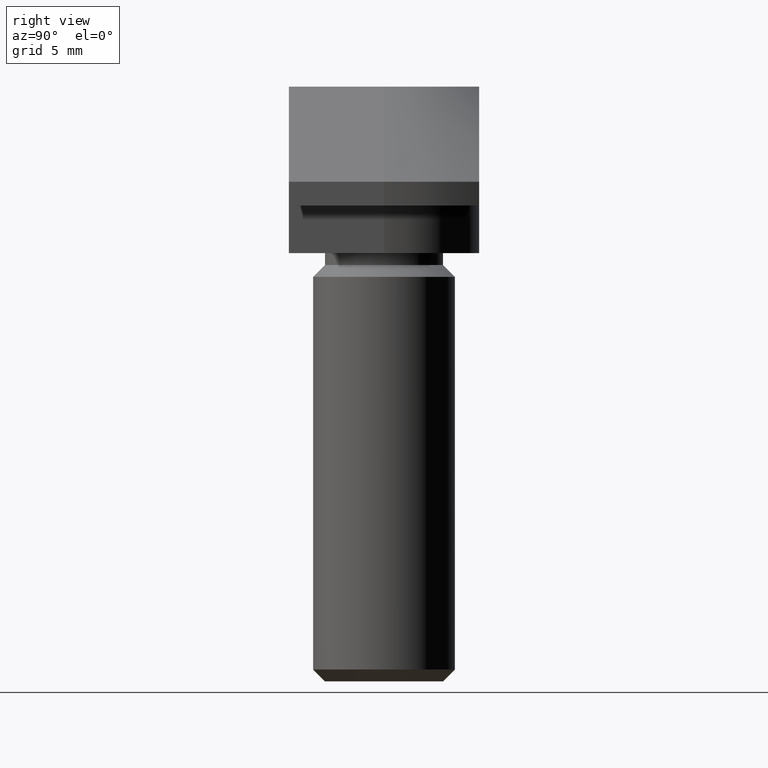
[diagram: clean part render]
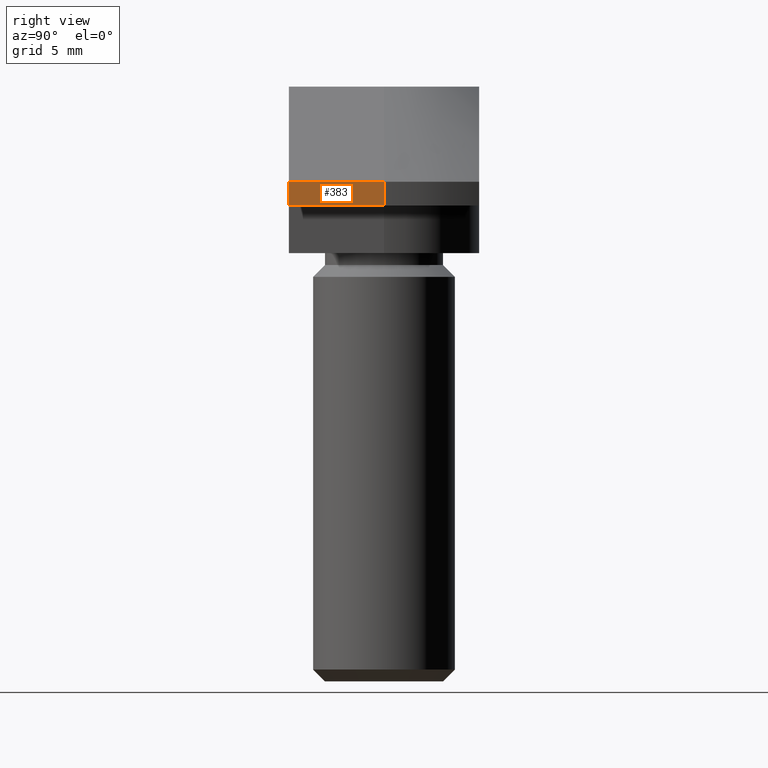
[diagram: same view with one face highlighted and labeled with its STEP entity id]
A machine part, right view. The second image highlights one B-rep face of the part: STEP entity #383.
In plain terms, the highlighted planar face has unit normal (1, 0, 0).
Its self-contained STEP definition (entity closure, byte-faithful):
#33=LINE('',#605,#67);
#37=LINE('',#620,#71);
#41=LINE('',#637,#75);
#42=LINE('',#638,#76);
#67=VECTOR('',#494,4.);
#71=VECTOR('',#506,1.);
#75=VECTOR('',#520,4.);
#76=VECTOR('',#521,1.);
#91=PLANE('',#423);
#125=FACE_OUTER_BOUND('',#153,.T.);
#153=EDGE_LOOP('',(#321,#322,#323,#324));
#196=VERTEX_POINT('',#602);
#197=VERTEX_POINT('',#604);
#201=VERTEX_POINT('',#615);
#206=VERTEX_POINT('',#636);
#237=EDGE_CURVE('',#196,#197,#33,.T.);
#244=EDGE_CURVE('',#201,#196,#37,.T.);
#251=EDGE_CURVE('',#201,#206,#41,.T.);
#252=EDGE_CURVE('',#197,#206,#42,.T.);
#321=ORIENTED_EDGE('',*,*,#244,.F.);
#322=ORIENTED_EDGE('',*,*,#251,.T.);
#323=ORIENTED_EDGE('',*,*,#252,.F.);
#324=ORIENTED_EDGE('',*,*,#237,.F.);
#383=ADVANCED_FACE('',(#125),#91,.T.);
#423=AXIS2_PLACEMENT_3D('',#635,#518,#519);
#494=DIRECTION('',(0.,-1.,0.));
#506=DIRECTION('',(0.,0.,-1.));
#518=DIRECTION('center_axis',(1.,0.,0.));
#519=DIRECTION('ref_axis',(0.,0.,-1.));
#520=DIRECTION('',(0.,-1.,0.));
#521=DIRECTION('',(0.,0.,1.));
#602=CARTESIAN_POINT('',(8.,0.,-5.));
#604=CARTESIAN_POINT('',(8.,-4.,-5.));
#605=CARTESIAN_POINT('',(8.,0.,-5.));
#615=CARTESIAN_POINT('',(8.,0.,-4.));
#620=CARTESIAN_POINT('',(8.,0.,-4.5));
#635=CARTESIAN_POINT('Origin',(8.,0.,-4.));
#636=CARTESIAN_POINT('',(8.,-4.,-4.));
#637=CARTESIAN_POINT('',(8.,0.,-4.));
#638=CARTESIAN_POINT('',(8.,-4.,-5.));